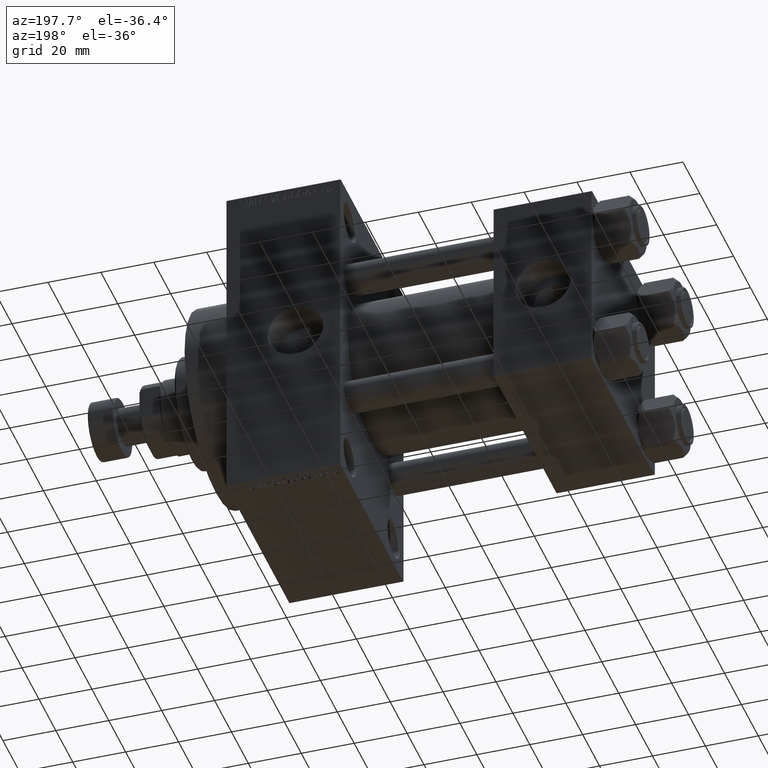
[diagram: clean part render]
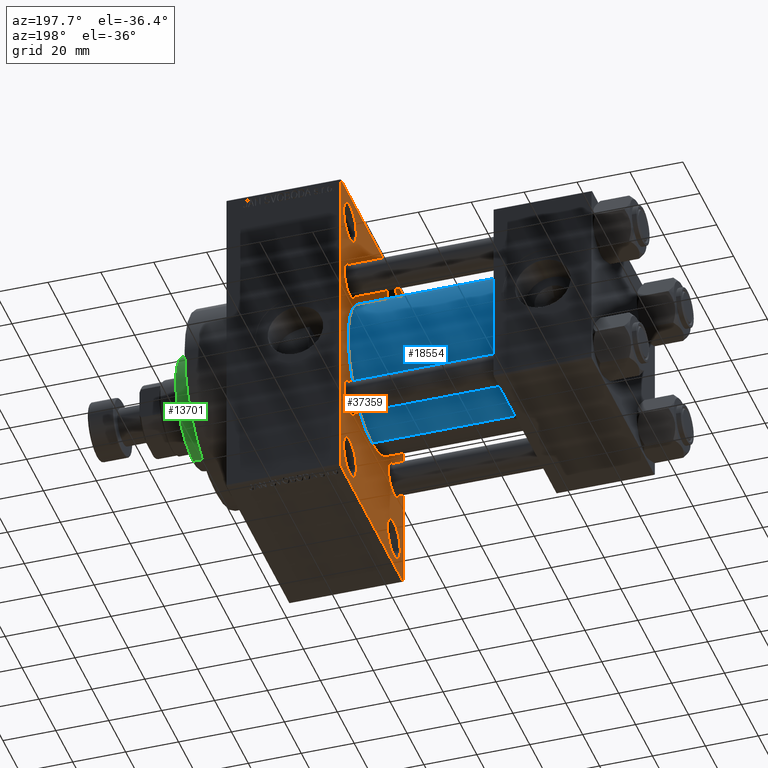
[diagram: same view with three faces highlighted in distinct colors, each labeled with its STEP entity id]
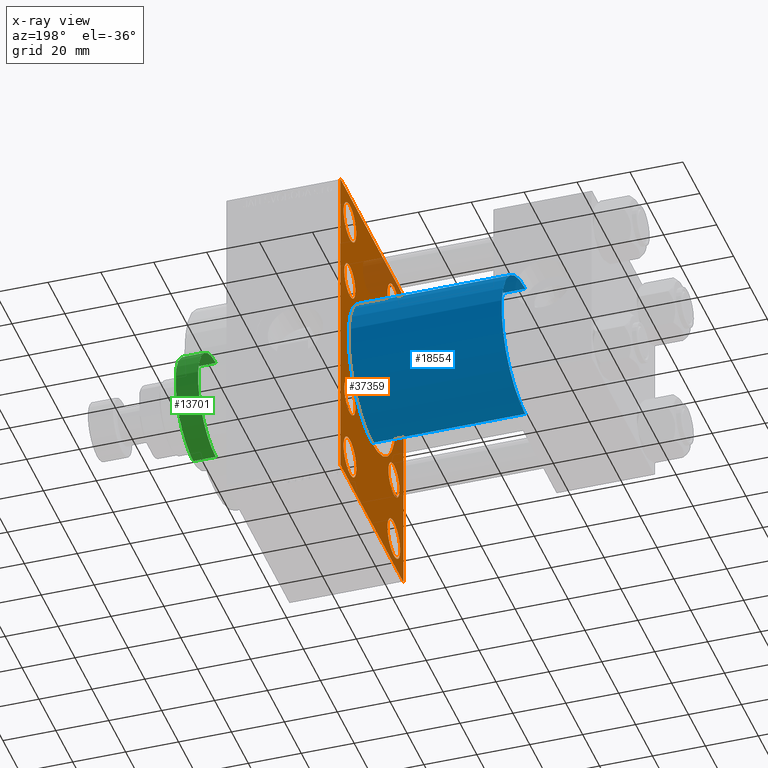
[diagram: x-ray of the same camera — body ghosted, the three highlighted faces saturated]
A machine part, auxiliary view with three faces highlighted in distinct colors.
The next image is the same camera in x-ray (body ghosted, the three faces saturated) — at least one of them is partly hidden behind the body in this view.
Their STEP definitions:

[orange] entity #37359 — the highlighted planar face has unit normal (-1, 0, 0).
#60 = EDGE_CURVE ( 'NONE', #6069, #12629, #31877, .T. ) ;
#241 = DIRECTION ( 'NONE',  ( 0.000000000000000000, 0.000000000000000000, 1.000000000000000000 ) ) ;
#506 = ORIENTED_EDGE ( 'NONE', *, *, #38273, .T. ) ;
#828 = LINE ( 'NONE', #29617, #46419 ) ;
#967 = VECTOR ( 'NONE', #41238, 1000.000000000000000 ) ;
#1167 = ORIENTED_EDGE ( 'NONE', *, *, #5459, .T. ) ;
#1237 = CARTESIAN_POINT ( 'NONE',  ( 95.00000000000000000, 26.00000000000000000, 52.49999999999999289 ) ) ;
#1279 = ORIENTED_EDGE ( 'NONE', *, *, #60, .T. ) ;
#1555 = EDGE_CURVE ( 'NONE', #23275, #31601, #32774, .T. ) ;
#1761 = DIRECTION ( 'NONE',  ( 0.000000000000000000, 0.000000000000000000, 1.000000000000000000 ) ) ;
#1781 = CARTESIAN_POINT ( 'NONE',  ( 95.00000000000000000, 26.00000000000000000, -52.49999999999999289 ) ) ;
#2282 = ORIENTED_EDGE ( 'NONE', *, *, #8789, .T. ) ;
#2299 = LINE ( 'NONE', #36771, #3420 ) ;
#2409 = EDGE_CURVE ( 'NONE', #49109, #8559, #14302, .T. ) ;
#2488 = CARTESIAN_POINT ( 'NONE',  ( 95.00000000000000000, 50.49999999999894840, 50.50000000000176215 ) ) ;
#2579 = ORIENTED_EDGE ( 'NONE', *, *, #48321, .T. ) ;
#2749 = CARTESIAN_POINT ( 'NONE',  ( 95.00000000000000000, -37.49999999999999289, -63.49999999999997158 ) ) ;
#2965 = FACE_BOUND ( 'NONE', #43950, .T. ) ;
#2967 = CARTESIAN_POINT ( 'NONE',  ( 95.00000000000000000, 26.00000000000000000, -52.49999999999999289 ) ) ;
#3208 = VERTEX_POINT ( 'NONE', #11898 ) ;
#3218 = PLANE ( 'NONE',  #3766 ) ;
#3251 = CARTESIAN_POINT ( 'NONE',  ( 95.00000000000000000, -25.99999999999999645, -52.49999999999999289 ) ) ;
#3420 = VECTOR ( 'NONE', #17657, 1000.000000000000000 ) ;
#3620 = DIRECTION ( 'NONE',  ( 1.000000000000000000, -0.000000000000000000, 0.000000000000000000 ) ) ;
#3691 = AXIS2_PLACEMENT_3D ( 'NONE', #18639, #22650, #34733 ) ;
#3760 = DIRECTION ( 'NONE',  ( 1.000000000000000000, -0.000000000000000000, 0.000000000000000000 ) ) ;
#3766 = AXIS2_PLACEMENT_3D ( 'NONE', #22813, #48503, #14041 ) ;
#3780 = CARTESIAN_POINT ( 'NONE',  ( 95.00000000000000000, 26.14999999999999858, 26.15000000000000213 ) ) ;
#3831 = AXIS2_PLACEMENT_3D ( 'NONE', #8039, #23612, #241 ) ;
#4162 = LINE ( 'NONE', #10978, #49416 ) ;
#4377 = CARTESIAN_POINT ( 'NONE',  ( 95.00000000000000000, -25.99999999999999645, -45.00000000000001421 ) ) ;
#4801 = CARTESIAN_POINT ( 'NONE',  ( 95.00000000000000000, 26.14999999999999858, -26.15000000000000213 ) ) ;
#5149 = VECTOR ( 'NONE', #6322, 1000.000000000000000 ) ;
#5459 = EDGE_CURVE ( 'NONE', #18749, #7358, #35192, .T. ) ;
#5480 = DIRECTION ( 'NONE',  ( 1.000000000000000000, -0.000000000000000000, 0.000000000000000000 ) ) ;
#5634 = EDGE_LOOP ( 'NONE', ( #19711, #14400 ) ) ;
#5744 = ORIENTED_EDGE ( 'NONE', *, *, #41387, .T. ) ;
#6069 = VERTEX_POINT ( 'NONE', #31096 ) ;
#6115 = EDGE_CURVE ( 'NONE', #13931, #27663, #14341, .T. ) ;
#6239 = DIRECTION ( 'NONE',  ( 0.000000000000000000, -0.7071067811865574537, 0.7071067811865376918 ) ) ;
#6275 = AXIS2_PLACEMENT_3D ( 'NONE', #42572, #45863, #7859 ) ;
#6322 = DIRECTION ( 'NONE',  ( 0.000000000000000000, -1.000000000000000000, -1.850371707708594563E-16 ) ) ;
#6495 = DIRECTION ( 'NONE',  ( 0.000000000000000000, 0.000000000000000000, 1.000000000000000000 ) ) ;
#6750 = LINE ( 'NONE', #18074, #48347 ) ;
#6988 = FACE_BOUND ( 'NONE', #40374, .T. ) ;
#7036 = CIRCLE ( 'NONE', #3831, 7.499999999999978684 ) ;
#7070 = ORIENTED_EDGE ( 'NONE', *, *, #27182, .T. ) ;
#7127 = AXIS2_PLACEMENT_3D ( 'NONE', #9923, #22234, #10931 ) ;
#7242 = FACE_OUTER_BOUND ( 'NONE', #8697, .T. ) ;
#7249 = VERTEX_POINT ( 'NONE', #33457 ) ;
#7358 = VERTEX_POINT ( 'NONE', #34448 ) ;
#7640 = VERTEX_POINT ( 'NONE', #13705 ) ;
#7859 = DIRECTION ( 'NONE',  ( 0.000000000000000000, 0.000000000000000000, 1.000000000000000000 ) ) ;
#7897 = DIRECTION ( 'NONE',  ( 0.000000000000000000, 0.000000000000000000, 1.000000000000000000 ) ) ;
#7972 = AXIS2_PLACEMENT_3D ( 'NONE', #4801, #39513, #1761 ) ;
#8039 = CARTESIAN_POINT ( 'NONE',  ( 95.00000000000000000, -25.99999999999999645, 52.50000000000000000 ) ) ;
#8087 = CIRCLE ( 'NONE', #41838, 7.499999999999978684 ) ;
#8290 = ORIENTED_EDGE ( 'NONE', *, *, #15440, .T. ) ;
#8310 = ORIENTED_EDGE ( 'NONE', *, *, #11875, .T. ) ;
#8512 = EDGE_CURVE ( 'NONE', #42171, #3208, #36065, .T. ) ;
#8559 = VERTEX_POINT ( 'NONE', #35785 ) ;
#8697 = EDGE_LOOP ( 'NONE', ( #27883, #22501, #11295, #7070, #49006, #18679, #27453, #22091 ) ) ;
#8789 = EDGE_CURVE ( 'NONE', #12629, #6069, #23223, .T. ) ;
#9422 = CIRCLE ( 'NONE', #32736, 7.499999999999978684 ) ;
#9595 = DIRECTION ( 'NONE',  ( -0.000000000000000000, -0.7071067811865573427, -0.7071067811865378028 ) ) ;
#9829 = VERTEX_POINT ( 'NONE', #41851 ) ;
#9923 = CARTESIAN_POINT ( 'NONE',  ( 95.00000000000000000, -26.14999999999999147, 26.15000000000000924 ) ) ;
#10655 = AXIS2_PLACEMENT_3D ( 'NONE', #39565, #20199, #31300 ) ;
#10931 = DIRECTION ( 'NONE',  ( 0.000000000000000000, 0.000000000000000000, 1.000000000000000000 ) ) ;
#10949 = VERTEX_POINT ( 'NONE', #36714 ) ;
#10978 = CARTESIAN_POINT ( 'NONE',  ( 95.00000000000000000, -37.49999999999999289, 63.99999999999997158 ) ) ;
#11295 = ORIENTED_EDGE ( 'NONE', *, *, #32433, .F. ) ;
#11568 = CARTESIAN_POINT ( 'NONE',  ( 95.00000000000000000, 26.14999999999999858, -26.15000000000000213 ) ) ;
#11686 = EDGE_CURVE ( 'NONE', #35146, #26499, #8087, .T. ) ;
#11875 = EDGE_CURVE ( 'NONE', #3208, #42171, #41048, .T. ) ;
#11898 = CARTESIAN_POINT ( 'NONE',  ( 95.00000000000000000, 26.14999999999999858, 19.64999999999999147 ) ) ;
#12424 = CIRCLE ( 'NONE', #22041, 7.499999999999978684 ) ;
#12629 = VERTEX_POINT ( 'NONE', #24495 ) ;
#12637 = AXIS2_PLACEMENT_3D ( 'NONE', #11568, #3760, #31185 ) ;
#13010 = CARTESIAN_POINT ( 'NONE',  ( 95.00000000000000000, -26.14999999999999147, 32.65000000000001990 ) ) ;
#13087 = CARTESIAN_POINT ( 'NONE',  ( 95.00000000000000000, -26.14999999999999147, -32.65000000000001990 ) ) ;
#13705 = CARTESIAN_POINT ( 'NONE',  ( 95.00000000000000000, -37.49999999999999289, 63.49999999999994316 ) ) ;
#13905 = EDGE_CURVE ( 'NONE', #7249, #15549, #2299, .T. ) ;
#13928 = EDGE_LOOP ( 'NONE', ( #2579, #39732 ) ) ;
#13931 = VERTEX_POINT ( 'NONE', #18414 ) ;
#14041 = DIRECTION ( 'NONE',  ( -0.000000000000000000, 0.000000000000000000, 1.000000000000000000 ) ) ;
#14151 = AXIS2_PLACEMENT_3D ( 'NONE', #48263, #5480, #32408 ) ;
#14153 = ORIENTED_EDGE ( 'NONE', *, *, #22767, .T. ) ;
#14302 = CIRCLE ( 'NONE', #6275, 7.499999999999978684 ) ;
#14341 = CIRCLE ( 'NONE', #41649, 6.500000000000008882 ) ;
#14400 = ORIENTED_EDGE ( 'NONE', *, *, #45894, .T. ) ;
#15362 = DIRECTION ( 'NONE',  ( 1.000000000000000000, -0.000000000000000000, 0.000000000000000000 ) ) ;
#15440 = EDGE_CURVE ( 'NONE', #27663, #13931, #22385, .T. ) ;
#15549 = VERTEX_POINT ( 'NONE', #38091 ) ;
#15656 = ORIENTED_EDGE ( 'NONE', *, *, #1555, .T. ) ;
#17359 = CIRCLE ( 'NONE', #14151, 6.500000000000008882 ) ;
#17446 = DIRECTION ( 'NONE',  ( -0.000000000000000000, 0.7071067811865524577, 0.7071067811865426878 ) ) ;
#17558 = DIRECTION ( 'NONE',  ( 1.000000000000000000, -0.000000000000000000, 0.000000000000000000 ) ) ;
#17657 = DIRECTION ( 'NONE',  ( 0.000000000000000000, -5.421010862427522170E-17, -1.000000000000000000 ) ) ;
#17905 = CARTESIAN_POINT ( 'NONE',  ( 95.00000000000000000, 37.49999999999999289, -64.00000000000000000 ) ) ;
#18065 = DIRECTION ( 'NONE',  ( 0.000000000000000000, 0.000000000000000000, 1.000000000000000000 ) ) ;
#18074 = CARTESIAN_POINT ( 'NONE',  ( 95.00000000000000000, -50.49999999999945999, -50.50000000000086686 ) ) ;
#18210 = CARTESIAN_POINT ( 'NONE',  ( 95.00000000000000000, -50.49999999999970868, 50.50000000000040501 ) ) ;
#18236 = ORIENTED_EDGE ( 'NONE', *, *, #6115, .T. ) ;
#18414 = CARTESIAN_POINT ( 'NONE',  ( 95.00000000000000000, -26.14999999999999147, 19.65000000000000213 ) ) ;
#18587 = LINE ( 'NONE', #2488, #967 ) ;
#18639 = CARTESIAN_POINT ( 'NONE',  ( 95.00000000000000000, -2.602085213965210642E-15, 0.000000000000000000 ) ) ;
#18650 = LINE ( 'NONE', #17905, #5149 ) ;
#18679 = ORIENTED_EDGE ( 'NONE', *, *, #26599, .T. ) ;
#18749 = VERTEX_POINT ( 'NONE', #45513 ) ;
#19420 = ORIENTED_EDGE ( 'NONE', *, *, #31901, .T. ) ;
#19492 = VECTOR ( 'NONE', #17446, 1000.000000000000000 ) ;
#19711 = ORIENTED_EDGE ( 'NONE', *, *, #2409, .T. ) ;
#19735 = LINE ( 'NONE', #27295, #42301 ) ;
#19957 = CARTESIAN_POINT ( 'NONE',  ( 95.00000000000000000, 26.14999999999999858, 26.15000000000000213 ) ) ;
#20199 = DIRECTION ( 'NONE',  ( 1.000000000000000000, 0.000000000000000000, 0.000000000000000000 ) ) ;
#20202 = VERTEX_POINT ( 'NONE', #30248 ) ;
#20554 = CARTESIAN_POINT ( 'NONE',  ( 95.00000000000000000, 26.00000000000000000, -59.99999999999997158 ) ) ;
#22041 = AXIS2_PLACEMENT_3D ( 'NONE', #1237, #47771, #48021 ) ;
#22047 = CARTESIAN_POINT ( 'NONE',  ( 95.00000000000000000, -36.99999999999995737, 63.99999999999997158 ) ) ;
#22091 = ORIENTED_EDGE ( 'NONE', *, *, #42196, .T. ) ;
#22234 = DIRECTION ( 'NONE',  ( 1.000000000000000000, -0.000000000000000000, 0.000000000000000000 ) ) ;
#22245 = EDGE_CURVE ( 'NONE', #31905, #34153, #25873, .T. ) ;
#22319 = FACE_BOUND ( 'NONE', #41129, .T. ) ;
#22385 = CIRCLE ( 'NONE', #7127, 6.500000000000008882 ) ;
#22501 = ORIENTED_EDGE ( 'NONE', *, *, #25714, .T. ) ;
#22650 = DIRECTION ( 'NONE',  ( 1.000000000000000000, 0.000000000000000000, 0.000000000000000000 ) ) ;
#22767 = EDGE_CURVE ( 'NONE', #9829, #24120, #31540, .T. ) ;
#22779 = DIRECTION ( 'NONE',  ( 0.000000000000000000, 0.000000000000000000, -1.000000000000000000 ) ) ;
#22813 = CARTESIAN_POINT ( 'NONE',  ( 95.00000000000000000, 0.000000000000000000, 0.000000000000000000 ) ) ;
#23223 = CIRCLE ( 'NONE', #7972, 6.500000000000008882 ) ;
#23275 = VERTEX_POINT ( 'NONE', #13087 ) ;
#23451 = AXIS2_PLACEMENT_3D ( 'NONE', #29648, #17558, #6495 ) ;
#23612 = DIRECTION ( 'NONE',  ( 1.000000000000000000, -0.000000000000000000, 0.000000000000000000 ) ) ;
#24120 = VERTEX_POINT ( 'NONE', #27696 ) ;
#24495 = CARTESIAN_POINT ( 'NONE',  ( 95.00000000000000000, 26.14999999999999858, -19.64999999999999503 ) ) ;
#25012 = CARTESIAN_POINT ( 'NONE',  ( 95.00000000000000000, -26.14999999999999147, 26.15000000000000924 ) ) ;
#25132 = CARTESIAN_POINT ( 'NONE',  ( 95.00000000000000000, -25.99999999999999645, 45.00000000000002132 ) ) ;
#25211 = EDGE_CURVE ( 'NONE', #26499, #35146, #38727, .T. ) ;
#25252 = LINE ( 'NONE', #18210, #19492 ) ;
#25527 = EDGE_LOOP ( 'NONE', ( #14153, #5744 ) ) ;
#25714 = EDGE_CURVE ( 'NONE', #48681, #49351, #6750, .T. ) ;
#25873 = CIRCLE ( 'NONE', #23451, 7.499999999999978684 ) ;
#26060 = CARTESIAN_POINT ( 'NONE',  ( 95.00000000000000000, 26.14999999999999858, 32.65000000000001990 ) ) ;
#26463 = CARTESIAN_POINT ( 'NONE',  ( 95.00000000000000000, -25.99999999999999645, 59.99999999999997868 ) ) ;
#26499 = VERTEX_POINT ( 'NONE', #35709 ) ;
#26598 = EDGE_LOOP ( 'NONE', ( #506, #15656 ) ) ;
#26599 = EDGE_CURVE ( 'NONE', #10949, #7249, #18587, .T. ) ;
#26606 = FACE_BOUND ( 'NONE', #5634, .T. ) ;
#27182 = EDGE_CURVE ( 'NONE', #7640, #33307, #25252, .T. ) ;
#27295 = CARTESIAN_POINT ( 'NONE',  ( 95.00000000000000000, 50.49999999999948841, -50.50000000000088107 ) ) ;
#27453 = ORIENTED_EDGE ( 'NONE', *, *, #13905, .T. ) ;
#27663 = VERTEX_POINT ( 'NONE', #13010 ) ;
#27696 = CARTESIAN_POINT ( 'NONE',  ( 95.00000000000000000, 8.269258236473776482E-16, -28.00000000000000000 ) ) ;
#27883 = ORIENTED_EDGE ( 'NONE', *, *, #31725, .T. ) ;
#28655 = DIRECTION ( 'NONE',  ( 0.000000000000000000, 0.000000000000000000, 1.000000000000000000 ) ) ;
#29418 = CIRCLE ( 'NONE', #3691, 28.00000000000000000 ) ;
#29536 = EDGE_LOOP ( 'NONE', ( #8290, #18236 ) ) ;
#29617 = CARTESIAN_POINT ( 'NONE',  ( 95.00000000000000000, 37.50000000000000000, 63.99999999999998579 ) ) ;
#29648 = CARTESIAN_POINT ( 'NONE',  ( 95.00000000000000000, -25.99999999999999645, 52.50000000000000000 ) ) ;
#29782 = AXIS2_PLACEMENT_3D ( 'NONE', #3780, #15362, #47023 ) ;
#30139 = FACE_BOUND ( 'NONE', #13928, .T. ) ;
#30248 = CARTESIAN_POINT ( 'NONE',  ( 95.00000000000000000, 36.99999999999999289, -64.00000000000000000 ) ) ;
#30419 = DIRECTION ( 'NONE',  ( 1.000000000000000000, -0.000000000000000000, 0.000000000000000000 ) ) ;
#30502 = AXIS2_PLACEMENT_3D ( 'NONE', #19957, #3620, #7897 ) ;
#31096 = CARTESIAN_POINT ( 'NONE',  ( 95.00000000000000000, 26.14999999999999858, -32.65000000000001279 ) ) ;
#31185 = DIRECTION ( 'NONE',  ( 0.000000000000000000, 0.000000000000000000, 1.000000000000000000 ) ) ;
#31300 = DIRECTION ( 'NONE',  ( 0.000000000000000000, 0.000000000000000000, -1.000000000000000000 ) ) ;
#31540 = CIRCLE ( 'NONE', #10655, 28.00000000000000000 ) ;
#31601 = VERTEX_POINT ( 'NONE', #47336 ) ;
#31725 = EDGE_CURVE ( 'NONE', #20202, #48681, #18650, .T. ) ;
#31877 = CIRCLE ( 'NONE', #12637, 6.500000000000008882 ) ;
#31901 = EDGE_CURVE ( 'NONE', #7358, #18749, #12424, .T. ) ;
#31905 = VERTEX_POINT ( 'NONE', #25132 ) ;
#32191 = DIRECTION ( 'NONE',  ( 1.000000000000000000, -0.000000000000000000, 0.000000000000000000 ) ) ;
#32314 = DIRECTION ( 'NONE',  ( 1.000000000000000000, -0.000000000000000000, 0.000000000000000000 ) ) ;
#32408 = DIRECTION ( 'NONE',  ( 0.000000000000000000, 0.000000000000000000, 1.000000000000000000 ) ) ;
#32433 = EDGE_CURVE ( 'NONE', #7640, #49351, #4162, .T. ) ;
#32736 = AXIS2_PLACEMENT_3D ( 'NONE', #3251, #30419, #45764 ) ;
#32774 = CIRCLE ( 'NONE', #44851, 6.500000000000008882 ) ;
#33307 = VERTEX_POINT ( 'NONE', #22047 ) ;
#33457 = CARTESIAN_POINT ( 'NONE',  ( 95.00000000000000000, 37.50000000000000000, 63.49999999999998579 ) ) ;
#33539 = CARTESIAN_POINT ( 'NONE',  ( 95.00000000000000000, -26.14999999999999147, -26.15000000000000924 ) ) ;
#33815 = EDGE_LOOP ( 'NONE', ( #42073, #39065 ) ) ;
#34153 = VERTEX_POINT ( 'NONE', #26463 ) ;
#34448 = CARTESIAN_POINT ( 'NONE',  ( 95.00000000000000000, 26.00000000000000000, 45.00000000000001421 ) ) ;
#34649 = CARTESIAN_POINT ( 'NONE',  ( 95.00000000000000000, -36.99999999999993605, -64.00000000000001421 ) ) ;
#34733 = DIRECTION ( 'NONE',  ( 0.000000000000000000, 0.000000000000000000, -1.000000000000000000 ) ) ;
#35146 = VERTEX_POINT ( 'NONE', #20554 ) ;
#35192 = CIRCLE ( 'NONE', #43218, 7.499999999999978684 ) ;
#35709 = CARTESIAN_POINT ( 'NONE',  ( 95.00000000000000000, 26.00000000000000000, -45.00000000000001421 ) ) ;
#35785 = CARTESIAN_POINT ( 'NONE',  ( 95.00000000000000000, -25.99999999999999645, -59.99999999999997158 ) ) ;
#36065 = CIRCLE ( 'NONE', #30502, 6.500000000000008882 ) ;
#36498 = DIRECTION ( 'NONE',  ( 0.000000000000000000, 0.000000000000000000, 1.000000000000000000 ) ) ;
#36580 = DIRECTION ( 'NONE',  ( 0.000000000000000000, 0.000000000000000000, 1.000000000000000000 ) ) ;
#36714 = CARTESIAN_POINT ( 'NONE',  ( 95.00000000000000000, 36.99999999999997158, 63.99999999999998579 ) ) ;
#36771 = CARTESIAN_POINT ( 'NONE',  ( 95.00000000000000000, 37.50000000000000000, 63.99999999999998579 ) ) ;
#37359 = ADVANCED_FACE ( 'NONE', ( #30139, #26606, #44986, #6988, #37441, #22319, #2965, #37692, #41703, #7242 ), #3218, .T. ) ;
#37441 = FACE_BOUND ( 'NONE', #29536, .T. ) ;
#37692 = FACE_BOUND ( 'NONE', #26598, .T. ) ;
#37694 = DIRECTION ( 'NONE',  ( 1.000000000000000000, -0.000000000000000000, 0.000000000000000000 ) ) ;
#37812 = DIRECTION ( 'NONE',  ( 0.000000000000000000, 0.000000000000000000, 1.000000000000000000 ) ) ;
#38091 = CARTESIAN_POINT ( 'NONE',  ( 95.00000000000000000, 37.49999999999999289, -63.50000000000001421 ) ) ;
#38273 = EDGE_CURVE ( 'NONE', #31601, #23275, #17359, .T. ) ;
#38727 = CIRCLE ( 'NONE', #45157, 7.499999999999978684 ) ;
#39065 = ORIENTED_EDGE ( 'NONE', *, *, #11686, .T. ) ;
#39513 = DIRECTION ( 'NONE',  ( 1.000000000000000000, -0.000000000000000000, 0.000000000000000000 ) ) ;
#39565 = CARTESIAN_POINT ( 'NONE',  ( 95.00000000000000000, -2.602085213965210642E-15, 0.000000000000000000 ) ) ;
#39732 = ORIENTED_EDGE ( 'NONE', *, *, #22245, .T. ) ;
#40374 = EDGE_LOOP ( 'NONE', ( #1167, #19420 ) ) ;
#40735 = CARTESIAN_POINT ( 'NONE',  ( 95.00000000000000000, 26.00000000000000000, 52.49999999999999289 ) ) ;
#41048 = CIRCLE ( 'NONE', #29782, 6.500000000000008882 ) ;
#41129 = EDGE_LOOP ( 'NONE', ( #45016, #8310 ) ) ;
#41238 = DIRECTION ( 'NONE',  ( 0.000000000000000000, 0.7071067811865672237, -0.7071067811865279218 ) ) ;
#41387 = EDGE_CURVE ( 'NONE', #24120, #9829, #29418, .T. ) ;
#41649 = AXIS2_PLACEMENT_3D ( 'NONE', #25012, #32314, #36580 ) ;
#41703 = FACE_BOUND ( 'NONE', #25527, .T. ) ;
#41838 = AXIS2_PLACEMENT_3D ( 'NONE', #1781, #44804, #36498 ) ;
#41851 = CARTESIAN_POINT ( 'NONE',  ( 95.00000000000000000, -2.602085213965210642E-15, 28.00000000000000000 ) ) ;
#42073 = ORIENTED_EDGE ( 'NONE', *, *, #25211, .T. ) ;
#42171 = VERTEX_POINT ( 'NONE', #26060 ) ;
#42196 = EDGE_CURVE ( 'NONE', #15549, #20202, #19735, .T. ) ;
#42301 = VECTOR ( 'NONE', #9595, 1000.000000000000000 ) ;
#42572 = CARTESIAN_POINT ( 'NONE',  ( 95.00000000000000000, -25.99999999999999645, -52.49999999999999289 ) ) ;
#43218 = AXIS2_PLACEMENT_3D ( 'NONE', #40735, #32191, #28655 ) ;
#43950 = EDGE_LOOP ( 'NONE', ( #2282, #1279 ) ) ;
#44804 = DIRECTION ( 'NONE',  ( 1.000000000000000000, -0.000000000000000000, 0.000000000000000000 ) ) ;
#44851 = AXIS2_PLACEMENT_3D ( 'NONE', #33539, #48873, #37812 ) ;
#44959 = DIRECTION ( 'NONE',  ( 0.000000000000000000, -1.000000000000000000, -1.850371707708594563E-16 ) ) ;
#44986 = FACE_BOUND ( 'NONE', #33815, .T. ) ;
#45016 = ORIENTED_EDGE ( 'NONE', *, *, #8512, .T. ) ;
#45157 = AXIS2_PLACEMENT_3D ( 'NONE', #2967, #37694, #18065 ) ;
#45513 = CARTESIAN_POINT ( 'NONE',  ( 95.00000000000000000, 26.00000000000000000, 59.99999999999997158 ) ) ;
#45764 = DIRECTION ( 'NONE',  ( 0.000000000000000000, 0.000000000000000000, 1.000000000000000000 ) ) ;
#45863 = DIRECTION ( 'NONE',  ( 1.000000000000000000, -0.000000000000000000, 0.000000000000000000 ) ) ;
#45894 = EDGE_CURVE ( 'NONE', #8559, #49109, #9422, .T. ) ;
#46419 = VECTOR ( 'NONE', #44959, 1000.000000000000000 ) ;
#47023 = DIRECTION ( 'NONE',  ( 0.000000000000000000, 0.000000000000000000, 1.000000000000000000 ) ) ;
#47336 = CARTESIAN_POINT ( 'NONE',  ( 95.00000000000000000, -26.14999999999999147, -19.65000000000000213 ) ) ;
#47771 = DIRECTION ( 'NONE',  ( 1.000000000000000000, -0.000000000000000000, 0.000000000000000000 ) ) ;
#48021 = DIRECTION ( 'NONE',  ( 0.000000000000000000, 0.000000000000000000, 1.000000000000000000 ) ) ;
#48263 = CARTESIAN_POINT ( 'NONE',  ( 95.00000000000000000, -26.14999999999999147, -26.15000000000000924 ) ) ;
#48321 = EDGE_CURVE ( 'NONE', #34153, #31905, #7036, .T. ) ;
#48347 = VECTOR ( 'NONE', #6239, 999.9999999999998863 ) ;
#48503 = DIRECTION ( 'NONE',  ( -1.000000000000000000, 0.000000000000000000, -0.000000000000000000 ) ) ;
#48681 = VERTEX_POINT ( 'NONE', #34649 ) ;
#48873 = DIRECTION ( 'NONE',  ( 1.000000000000000000, -0.000000000000000000, 0.000000000000000000 ) ) ;
#49006 = ORIENTED_EDGE ( 'NONE', *, *, #49712, .F. ) ;
#49109 = VERTEX_POINT ( 'NONE', #4377 ) ;
#49351 = VERTEX_POINT ( 'NONE', #2749 ) ;
#49416 = VECTOR ( 'NONE', #22779, 1000.000000000000000 ) ;
#49712 = EDGE_CURVE ( 'NONE', #10949, #33307, #828, .T. ) ;

[blue] entity #18554 — the highlighted cylindrical surface (partial cylindrical patch) has radius 28 mm, axis along (-1, -0, -0).
#2694 = AXIS2_PLACEMENT_3D ( 'NONE', #34419, #18812, #30147 ) ;
#3691 = AXIS2_PLACEMENT_3D ( 'NONE', #18639, #22650, #34733 ) ;
#3904 = CARTESIAN_POINT ( 'NONE',  ( 95.00000000000000000, 8.269258236473776482E-16, -28.00000000000000000 ) ) ;
#9511 = EDGE_CURVE ( 'NONE', #24120, #21381, #11458, .T. ) ;
#9829 = VERTEX_POINT ( 'NONE', #41851 ) ;
#11458 = LINE ( 'NONE', #3904, #32086 ) ;
#12797 = CARTESIAN_POINT ( 'NONE',  ( 37.00000000000000000, 8.269258236473776482E-16, -28.00000000000000000 ) ) ;
#17654 = EDGE_CURVE ( 'NONE', #9829, #31445, #47516, .T. ) ;
#18547 = AXIS2_PLACEMENT_3D ( 'NONE', #34510, #42280, #26939 ) ;
#18554 = ADVANCED_FACE ( 'NONE', ( #39246 ), #38263, .T. ) ;
#18639 = CARTESIAN_POINT ( 'NONE',  ( 95.00000000000000000, -2.602085213965210642E-15, 0.000000000000000000 ) ) ;
#18757 = DIRECTION ( 'NONE',  ( -1.000000000000000000, -0.000000000000000000, -0.000000000000000000 ) ) ;
#18812 = DIRECTION ( 'NONE',  ( 1.000000000000000000, -0.000000000000000000, 0.000000000000000000 ) ) ;
#21381 = VERTEX_POINT ( 'NONE', #12797 ) ;
#22650 = DIRECTION ( 'NONE',  ( 1.000000000000000000, 0.000000000000000000, 0.000000000000000000 ) ) ;
#24120 = VERTEX_POINT ( 'NONE', #27696 ) ;
#24370 = CIRCLE ( 'NONE', #2694, 28.00000000000000000 ) ;
#24876 = DIRECTION ( 'NONE',  ( -1.000000000000000000, -0.000000000000000000, -0.000000000000000000 ) ) ;
#26939 = DIRECTION ( 'NONE',  ( 0.000000000000000000, 0.000000000000000000, 1.000000000000000000 ) ) ;
#27696 = CARTESIAN_POINT ( 'NONE',  ( 95.00000000000000000, 8.269258236473776482E-16, -28.00000000000000000 ) ) ;
#28113 = VECTOR ( 'NONE', #24876, 1000.000000000000000 ) ;
#29261 = ORIENTED_EDGE ( 'NONE', *, *, #29777, .T. ) ;
#29418 = CIRCLE ( 'NONE', #3691, 28.00000000000000000 ) ;
#29777 = EDGE_CURVE ( 'NONE', #21381, #31445, #24370, .T. ) ;
#30147 = DIRECTION ( 'NONE',  ( 0.000000000000000000, 0.000000000000000000, 1.000000000000000000 ) ) ;
#30768 = EDGE_LOOP ( 'NONE', ( #46696, #38356, #29261, #34058 ) ) ;
#31445 = VERTEX_POINT ( 'NONE', #41597 ) ;
#31926 = CARTESIAN_POINT ( 'NONE',  ( 95.00000000000000000, -2.602085213965210642E-15, 28.00000000000000000 ) ) ;
#32086 = VECTOR ( 'NONE', #18757, 1000.000000000000000 ) ;
#34058 = ORIENTED_EDGE ( 'NONE', *, *, #17654, .F. ) ;
#34419 = CARTESIAN_POINT ( 'NONE',  ( 37.00000000000000000, -2.602085213965210642E-15, 0.000000000000000000 ) ) ;
#34510 = CARTESIAN_POINT ( 'NONE',  ( 95.00000000000000000, -2.602085213965210642E-15, 0.000000000000000000 ) ) ;
#34733 = DIRECTION ( 'NONE',  ( 0.000000000000000000, 0.000000000000000000, -1.000000000000000000 ) ) ;
#38263 = CYLINDRICAL_SURFACE ( 'NONE', #18547, 28.00000000000000000 ) ;
#38356 = ORIENTED_EDGE ( 'NONE', *, *, #9511, .T. ) ;
#39246 = FACE_OUTER_BOUND ( 'NONE', #30768, .T. ) ;
#41387 = EDGE_CURVE ( 'NONE', #24120, #9829, #29418, .T. ) ;
#41597 = CARTESIAN_POINT ( 'NONE',  ( 37.00000000000000000, -2.602085213965210642E-15, 28.00000000000000000 ) ) ;
#41851 = CARTESIAN_POINT ( 'NONE',  ( 95.00000000000000000, -2.602085213965210642E-15, 28.00000000000000000 ) ) ;
#42280 = DIRECTION ( 'NONE',  ( -1.000000000000000000, -0.000000000000000000, -0.000000000000000000 ) ) ;
#46696 = ORIENTED_EDGE ( 'NONE', *, *, #41387, .F. ) ;
#47516 = LINE ( 'NONE', #31926, #28113 ) ;

[green] entity #13701 — the highlighted cylindrical surface (partial cylindrical patch) has radius 21 mm, axis along (-1, 0, 0).
#1244 = DIRECTION ( 'NONE',  ( 1.000000000000000000, 0.000000000000000000, 0.000000000000000000 ) ) ;
#2472 = EDGE_CURVE ( 'NONE', #3458, #40832, #42078, .T. ) ;
#3458 = VERTEX_POINT ( 'NONE', #7324 ) ;
#5341 = EDGE_CURVE ( 'NONE', #29070, #3458, #37605, .T. ) ;
#5555 = AXIS2_PLACEMENT_3D ( 'NONE', #16371, #8575, #47297 ) ;
#6148 = ORIENTED_EDGE ( 'NONE', *, *, #5341, .T. ) ;
#6624 = CARTESIAN_POINT ( 'NONE',  ( -21.00000000000000000, 0.000000000000000000, 43.25999999999999801 ) ) ;
#7324 = CARTESIAN_POINT ( 'NONE',  ( -21.00000000000000000, 0.000000000000000000, 51.75999999999999801 ) ) ;
#7534 = ORIENTED_EDGE ( 'NONE', *, *, #15887, .T. ) ;
#8575 = DIRECTION ( 'NONE',  ( 0.000000000000000000, 0.000000000000000000, 1.000000000000000000 ) ) ;
#10683 = FACE_OUTER_BOUND ( 'NONE', #34870, .T. ) ;
#10985 = LINE ( 'NONE', #48719, #27536 ) ;
#13701 = ADVANCED_FACE ( 'NONE', ( #10683 ), #17967, .T. ) ;
#14173 = CARTESIAN_POINT ( 'NONE',  ( 21.00000000000000000, 2.571758278209441661E-15, 51.75999999999999801 ) ) ;
#15887 = EDGE_CURVE ( 'NONE', #40832, #30658, #26454, .T. ) ;
#16371 = CARTESIAN_POINT ( 'NONE',  ( 0.000000000000000000, 0.000000000000000000, 43.25999999999999801 ) ) ;
#17967 = CYLINDRICAL_SURFACE ( 'NONE', #49252, 21.00000000000000000 ) ;
#20167 = CARTESIAN_POINT ( 'NONE',  ( -21.00000000000000000, 0.000000000000000000, 52.25999999999999801 ) ) ;
#20189 = DIRECTION ( 'NONE',  ( -1.000000000000000000, 0.000000000000000000, 0.000000000000000000 ) ) ;
#21802 = DIRECTION ( 'NONE',  ( -0.000000000000000000, -0.000000000000000000, -1.000000000000000000 ) ) ;
#22323 = AXIS2_PLACEMENT_3D ( 'NONE', #35484, #43509, #1244 ) ;
#23043 = ORIENTED_EDGE ( 'NONE', *, *, #27795, .F. ) ;
#25821 = ORIENTED_EDGE ( 'NONE', *, *, #2472, .T. ) ;
#26454 = CIRCLE ( 'NONE', #5555, 21.00000000000000000 ) ;
#26738 = DIRECTION ( 'NONE',  ( -0.000000000000000000, -0.000000000000000000, -1.000000000000000000 ) ) ;
#27536 = VECTOR ( 'NONE', #21802, 1000.000000000000000 ) ;
#27795 = EDGE_CURVE ( 'NONE', #29070, #30658, #10985, .T. ) ;
#29070 = VERTEX_POINT ( 'NONE', #14173 ) ;
#30658 = VERTEX_POINT ( 'NONE', #35159 ) ;
#33324 = CARTESIAN_POINT ( 'NONE',  ( 0.000000000000000000, 0.000000000000000000, 52.25999999999999801 ) ) ;
#34870 = EDGE_LOOP ( 'NONE', ( #23043, #6148, #25821, #7534 ) ) ;
#35159 = CARTESIAN_POINT ( 'NONE',  ( 21.00000000000000000, 2.571758278209441661E-15, 43.25999999999999801 ) ) ;
#35484 = CARTESIAN_POINT ( 'NONE',  ( 0.000000000000000000, 0.000000000000000000, 51.75999999999999801 ) ) ;
#37605 = CIRCLE ( 'NONE', #22323, 21.00000000000000000 ) ;
#40832 = VERTEX_POINT ( 'NONE', #6624 ) ;
#42078 = LINE ( 'NONE', #20167, #42403 ) ;
#42403 = VECTOR ( 'NONE', #26738, 1000.000000000000000 ) ;
#43509 = DIRECTION ( 'NONE',  ( 0.000000000000000000, 0.000000000000000000, -1.000000000000000000 ) ) ;
#47297 = DIRECTION ( 'NONE',  ( 1.000000000000000000, 0.000000000000000000, 0.000000000000000000 ) ) ;
#48652 = DIRECTION ( 'NONE',  ( -0.000000000000000000, -0.000000000000000000, -1.000000000000000000 ) ) ;
#48719 = CARTESIAN_POINT ( 'NONE',  ( 21.00000000000000000, 2.571758278209441661E-15, 52.25999999999999801 ) ) ;
#49252 = AXIS2_PLACEMENT_3D ( 'NONE', #33324, #48652, #20189 ) ;